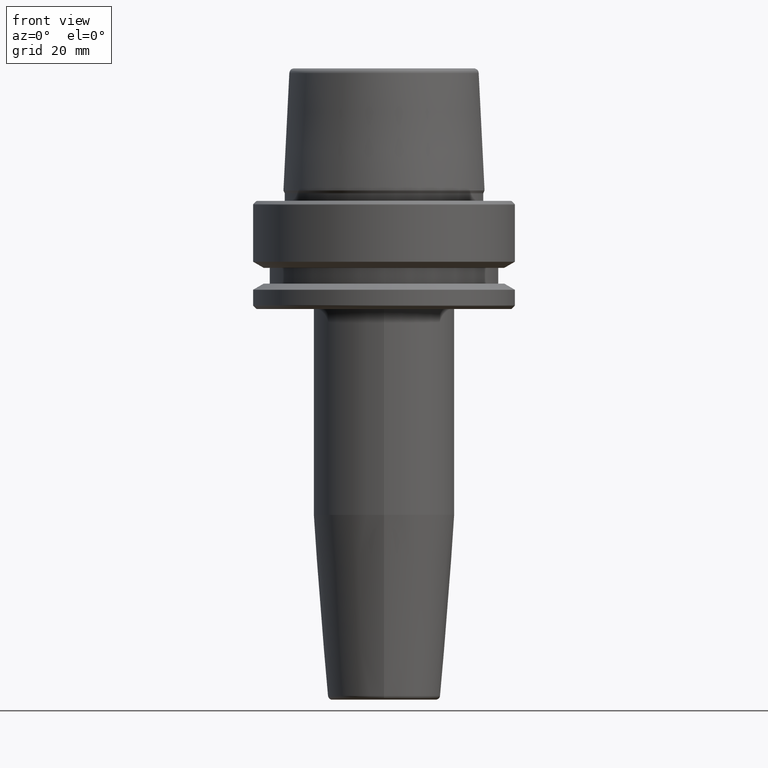
[diagram: clean part render]
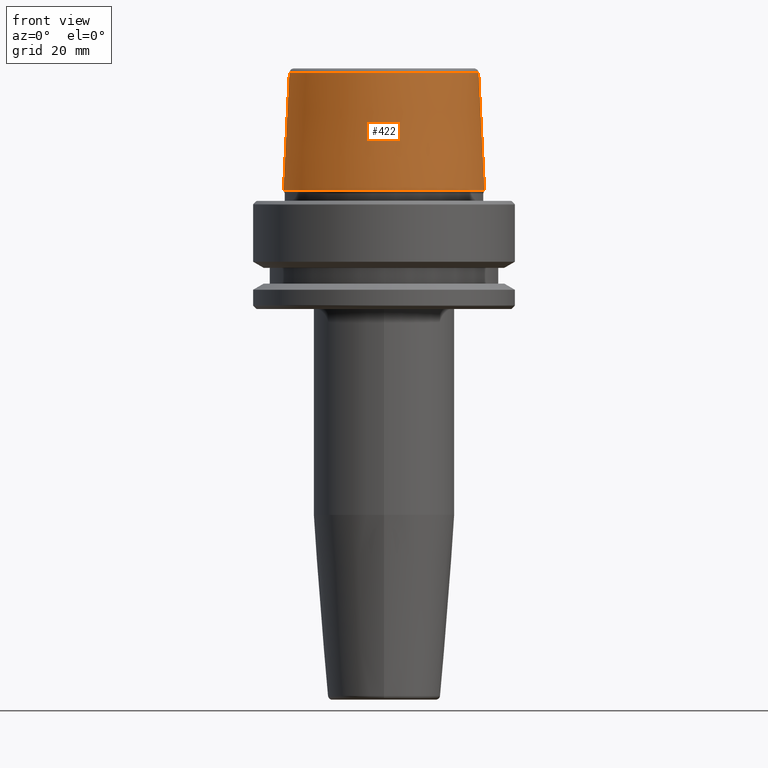
[diagram: same view with one face highlighted and labeled with its STEP entity id]
A machine part, front view. The second image highlights one B-rep face of the part: STEP entity #422.
In plain terms, the highlighted conical surface has half-angle 2.868 deg.
Its self-contained STEP definition (entity closure, byte-faithful):
#65 = AXIS2_PLACEMENT_3D ( 'NONE', #906, #348, #444 ) ;
#83 = AXIS2_PLACEMENT_3D ( 'NONE', #1056, #1172, #352 ) ;
#90 = EDGE_CURVE ( 'NONE', #976, #149, #157, .T. ) ;
#124 = VERTEX_POINT ( 'NONE', #284 ) ;
#149 = VERTEX_POINT ( 'NONE', #574 ) ;
#157 = LINE ( 'NONE', #544, #1187 ) ;
#161 = DIRECTION ( 'NONE',  ( -0.0000000000000000000, -0.0000000000000000000, 1.000000000000000000 ) ) ;
#162 = CARTESIAN_POINT ( 'NONE',  ( -22.77957961851797100, 0.0000000000000000000, 30.76004333261571900 ) ) ;
#246 = ORIENTED_EDGE ( 'NONE', *, *, #571, .F. ) ;
#249 = CONICAL_SURFACE ( 'NONE', #65, 24.19537568275369200, 0.05005701257455997400 ) ;
#250 = EDGE_CURVE ( 'NONE', #124, #149, #554, .T. ) ;
#252 = VERTEX_POINT ( 'NONE', #162 ) ;
#284 = CARTESIAN_POINT ( 'NONE',  ( -24.19537568275369200, 2.963078938405201500E-015, 2.500000000000002200 ) ) ;
#330 = DIRECTION ( 'NONE',  ( 0.05003611051310804400, 6.127656258166099700E-018, -0.9987474093306675200 ) ) ;
#346 = DIRECTION ( 'NONE',  ( 1.000000000000000000, 0.0000000000000000000, 0.0000000000000000000 ) ) ;
#348 = DIRECTION ( 'NONE',  ( 0.0000000000000000000, 0.0000000000000000000, -1.000000000000000000 ) ) ;
#352 = DIRECTION ( 'NONE',  ( 1.000000000000000000, 0.0000000000000000000, 0.0000000000000000000 ) ) ;
#357 = CARTESIAN_POINT ( 'NONE',  ( 22.77957961851797100, 2.876386432489616700E-015, 30.76004333261571900 ) ) ;
#388 = DIRECTION ( 'NONE',  ( -0.05003611051310804400, 0.0000000000000000000, -0.9987474093306675200 ) ) ;
#422 = ADVANCED_FACE ( 'NONE', ( #645 ), #249, .T. ) ;
#444 = DIRECTION ( 'NONE',  ( -1.000000000000000000, 0.0000000000000000000, 0.0000000000000000000 ) ) ;
#544 = CARTESIAN_POINT ( 'NONE',  ( 24.19537568275369200, 2.963078938405201500E-015, 2.500000000000002200 ) ) ;
#554 = CIRCLE ( 'NONE', #83, 24.19537568275369200 ) ;
#571 = EDGE_CURVE ( 'NONE', #252, #976, #731, .T. ) ;
#574 = CARTESIAN_POINT ( 'NONE',  ( 24.19537568275369200, 0.0000000000000000000, 2.500000000000002200 ) ) ;
#645 = FACE_OUTER_BOUND ( 'NONE', #1102, .T. ) ;
#701 = ORIENTED_EDGE ( 'NONE', *, *, #90, .F. ) ;
#728 = LINE ( 'NONE', #1061, #1158 ) ;
#731 = CIRCLE ( 'NONE', #969, 22.77957961851797100 ) ;
#787 = EDGE_CURVE ( 'NONE', #252, #124, #728, .T. ) ;
#906 = CARTESIAN_POINT ( 'NONE',  ( 0.0000000000000000000, 0.0000000000000000000, 2.500000000000002200 ) ) ;
#969 = AXIS2_PLACEMENT_3D ( 'NONE', #1201, #161, #346 ) ;
#976 = VERTEX_POINT ( 'NONE', #357 ) ;
#1012 = ORIENTED_EDGE ( 'NONE', *, *, #787, .T. ) ;
#1056 = CARTESIAN_POINT ( 'NONE',  ( 0.0000000000000000000, 0.0000000000000000000, 2.500000000000002200 ) ) ;
#1061 = CARTESIAN_POINT ( 'NONE',  ( -24.19537568275369200, 0.0000000000000000000, 2.500000000000002200 ) ) ;
#1102 = EDGE_LOOP ( 'NONE', ( #701, #246, #1012, #1156 ) ) ;
#1156 = ORIENTED_EDGE ( 'NONE', *, *, #250, .T. ) ;
#1158 = VECTOR ( 'NONE', #388, 1000.000000000000200 ) ;
#1172 = DIRECTION ( 'NONE',  ( -0.0000000000000000000, -0.0000000000000000000, 1.000000000000000000 ) ) ;
#1187 = VECTOR ( 'NONE', #330, 1000.000000000000200 ) ;
#1201 = CARTESIAN_POINT ( 'NONE',  ( 0.0000000000000000000, 0.0000000000000000000, 30.76004333261571900 ) ) ;